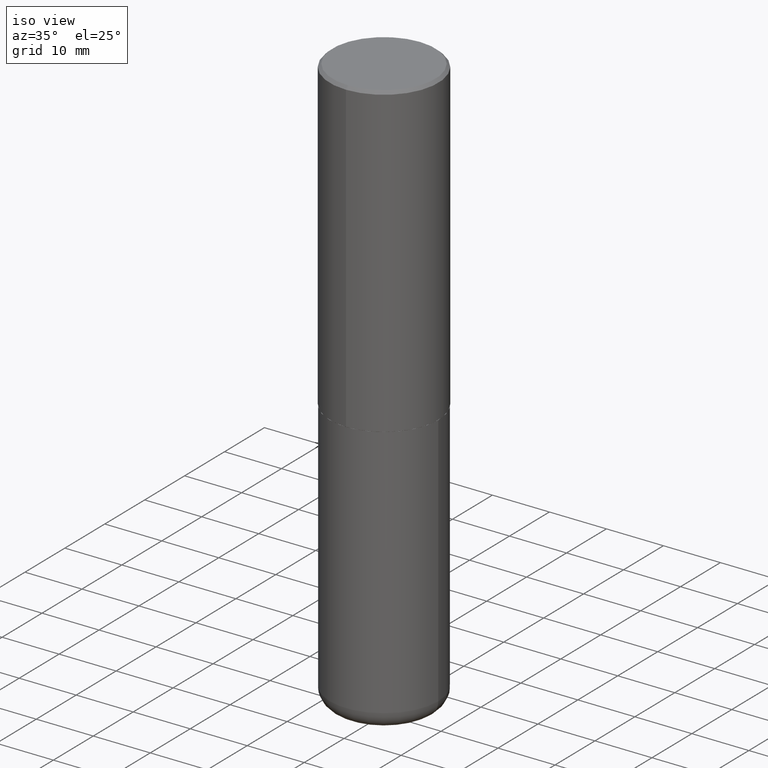
[diagram: clean part render]
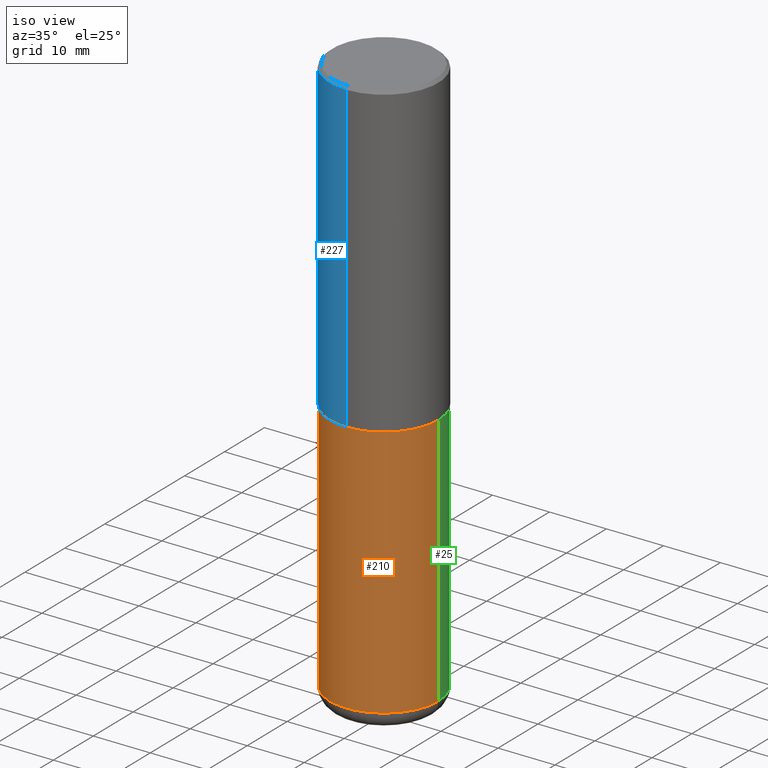
[diagram: same view with three faces highlighted in distinct colors, each labeled with its STEP entity id]
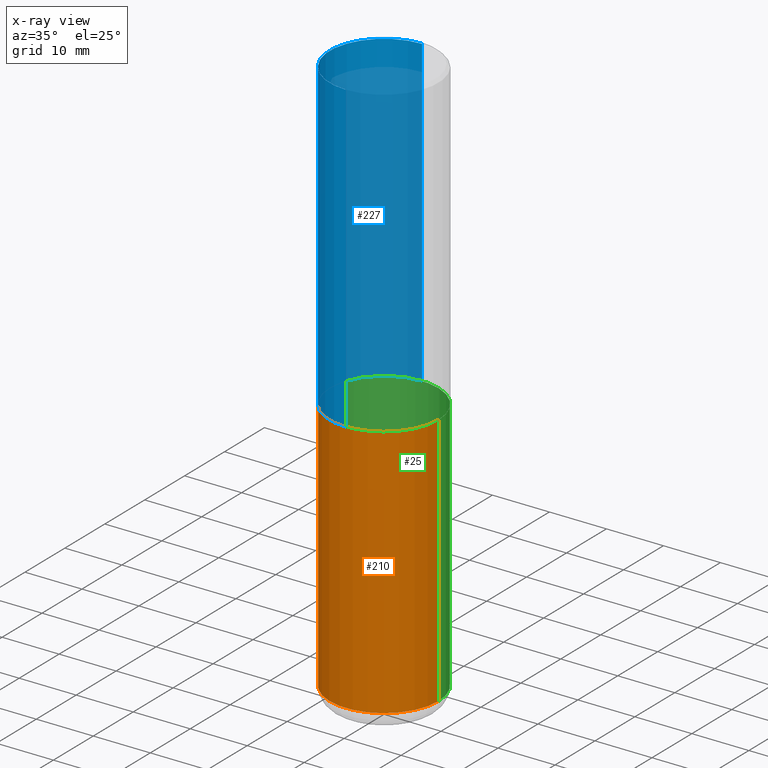
[diagram: x-ray of the same camera — body ghosted, the three highlighted faces saturated]
A machine part, iso view with three faces highlighted in distinct colors.
The next image is the same camera in x-ray (body ghosted, the three faces saturated) — at least one of them is partly hidden behind the body in this view.
Their STEP definitions:

[orange] entity #210 — the highlighted cylindrical surface (partial cylindrical patch) has radius 9.525 mm, axis along (-0, 0, 1).
#3 = EDGE_CURVE ( 'NONE', #370, #16, #353, .T. ) ;
#13 = AXIS2_PLACEMENT_3D ( 'NONE', #289, #185, #325 ) ;
#16 = VERTEX_POINT ( 'NONE', #89 ) ;
#28 = LINE ( 'NONE', #147, #78 ) ;
#76 = DIRECTION ( 'NONE',  ( 1.000000000000000000, -6.982962677686265922E-15, 4.876176775795935793E-29 ) ) ;
#78 = VECTOR ( 'NONE', #115, 39.37007874015748143 ) ;
#89 = CARTESIAN_POINT ( 'NONE',  ( -0.3750000000000000555, -7.818637460776168963E-15, -2.125000000000000000 ) ) ;
#97 = VERTEX_POINT ( 'NONE', #404 ) ;
#102 = VERTEX_POINT ( 'NONE', #174 ) ;
#110 = EDGE_CURVE ( 'NONE', #97, #102, #28, .T. ) ;
#115 = DIRECTION ( 'NONE',  ( -2.445468806185136877E-29, 3.491481338843145188E-15, 1.000000000000000000 ) ) ;
#128 = EDGE_LOOP ( 'NONE', ( #191, #163, #360, #365 ) ) ;
#141 = CARTESIAN_POINT ( 'NONE',  ( -0.3750000000000001110, -1.088241233561102684E-14, -3.880000000000000338 ) ) ;
#147 = CARTESIAN_POINT ( 'NONE',  ( 0.3750000000000000555, -2.618611004132350016E-15, 1.828566290923476203E-29 ) ) ;
#163 = ORIENTED_EDGE ( 'NONE', *, *, #205, .T. ) ;
#165 = FACE_OUTER_BOUND ( 'NONE', #128, .T. ) ;
#172 = DIRECTION ( 'NONE',  ( -2.445468806185136597E-29, 3.491481338843145583E-15, 1.000000000000000000 ) ) ;
#174 = CARTESIAN_POINT ( 'NONE',  ( 0.3750000000000000555, -1.003800884917403364E-14, -2.125000000000000000 ) ) ;
#185 = DIRECTION ( 'NONE',  ( -2.445468806185136597E-29, 3.491481338843145583E-15, 1.000000000000000000 ) ) ;
#191 = ORIENTED_EDGE ( 'NONE', *, *, #3, .F. ) ;
#205 = EDGE_CURVE ( 'NONE', #370, #97, #329, .T. ) ;
#210 = ADVANCED_FACE ( 'NONE', ( #165 ), #273, .T. ) ;
#235 = DIRECTION ( 'NONE',  ( 1.000000000000000000, -6.982962677686266711E-15, 0.000000000000000000 ) ) ;
#239 = DIRECTION ( 'NONE',  ( -2.445468806185136597E-29, 3.491481338843145583E-15, 1.000000000000000000 ) ) ;
#260 = DIRECTION ( 'NONE',  ( -2.445468806185136877E-29, 3.491481338843145188E-15, 1.000000000000000000 ) ) ;
#273 = CYLINDRICAL_SURFACE ( 'NONE', #364, 0.3750000000000000555 ) ;
#289 = CARTESIAN_POINT ( 'NONE',  ( 5.196621213143415268E-29, -7.419397845041683624E-15, -2.125000000000000000 ) ) ;
#291 = CARTESIAN_POINT ( 'NONE',  ( 9.488418967998330085E-29, -1.354694759471140570E-14, -3.880000000000000338 ) ) ;
#321 = AXIS2_PLACEMENT_3D ( 'NONE', #291, #239, #235 ) ;
#325 = DIRECTION ( 'NONE',  ( 1.000000000000000000, -6.982962677686266711E-15, 0.000000000000000000 ) ) ;
#329 = CIRCLE ( 'NONE', #321, 0.3750000000000000555 ) ;
#353 = LINE ( 'NONE', #415, #382 ) ;
#356 = CIRCLE ( 'NONE', #13, 0.3750000000000000555 ) ;
#360 = ORIENTED_EDGE ( 'NONE', *, *, #110, .T. ) ;
#364 = AXIS2_PLACEMENT_3D ( 'NONE', #401, #172, #76 ) ;
#365 = ORIENTED_EDGE ( 'NONE', *, *, #411, .F. ) ;
#370 = VERTEX_POINT ( 'NONE', #141 ) ;
#382 = VECTOR ( 'NONE', #260, 39.37007874015748143 ) ;
#401 = CARTESIAN_POINT ( 'NONE',  ( 0.000000000000000000, 0.000000000000000000, 0.000000000000000000 ) ) ;
#404 = CARTESIAN_POINT ( 'NONE',  ( 0.3750000000000001110, -1.616555859884375729E-14, -3.880000000000000338 ) ) ;
#411 = EDGE_CURVE ( 'NONE', #16, #102, #356, .T. ) ;
#415 = CARTESIAN_POINT ( 'NONE',  ( -0.3750000000000000555, 2.664535259100376091E-15, -1.844600658845589598E-29 ) ) ;

[blue] entity #227 — the highlighted cylindrical surface (partial cylindrical patch) has radius 9.525 mm, axis along (-0, 0, 1).
#35 = DIRECTION ( 'NONE',  ( -6.982962677686266711E-15, -1.000000000000000000, 3.492725745712018196E-15 ) ) ;
#37 = ORIENTED_EDGE ( 'NONE', *, *, #87, .F. ) ;
#50 = CIRCLE ( 'NONE', #390, 0.3750000000000001110 ) ;
#52 = CARTESIAN_POINT ( 'NONE',  ( 2.664535259100376880E-15, 0.3750000000000002220, -1.309772154642007612E-15 ) ) ;
#54 = DIRECTION ( 'NONE',  ( -2.444599841513017620E-29, 3.492725745712018196E-15, 1.000000000000000000 ) ) ;
#75 = EDGE_CURVE ( 'NONE', #362, #302, #50, .T. ) ;
#87 = EDGE_CURVE ( 'NONE', #150, #362, #409, .T. ) ;
#95 = VERTEX_POINT ( 'NONE', #369 ) ;
#125 = ORIENTED_EDGE ( 'NONE', *, *, #352, .T. ) ;
#133 = ORIENTED_EDGE ( 'NONE', *, *, #347, .T. ) ;
#150 = VERTEX_POINT ( 'NONE', #153 ) ;
#153 = CARTESIAN_POINT ( 'NONE',  ( 2.664535259100402913E-15, 0.3749999999999928391, -2.124000000000000998 ) ) ;
#154 = VECTOR ( 'NONE', #54, 39.37007874015748143 ) ;
#168 = LINE ( 'NONE', #375, #154 ) ;
#183 = AXIS2_PLACEMENT_3D ( 'NONE', #209, #406, #279 ) ;
#189 = ORIENTED_EDGE ( 'NONE', *, *, #75, .F. ) ;
#190 = CYLINDRICAL_SURFACE ( 'NONE', #252, 0.3750000000000002220 ) ;
#196 = CARTESIAN_POINT ( 'NONE',  ( -2.572686749164324336E-15, -0.3750000000000001665, -0.01999999999999877570 ) ) ;
#201 = DIRECTION ( 'NONE',  ( -6.982962677686265922E-15, -1.000000000000000000, 3.494488891895535640E-15 ) ) ;
#209 = CARTESIAN_POINT ( 'NONE',  ( 5.192330063373648592E-29, -7.418549483892325607E-15, -2.123999999999999666 ) ) ;
#227 = ADVANCED_FACE ( 'NONE', ( #313 ), #190, .T. ) ;
#240 = CARTESIAN_POINT ( 'NONE',  ( 4.889199683026055945E-31, -6.985451491424065481E-17, -0.02000000000000008715 ) ) ;
#252 = AXIS2_PLACEMENT_3D ( 'NONE', #299, #306, #35 ) ;
#279 = DIRECTION ( 'NONE',  ( -6.982962677686266711E-15, -1.000000000000000000, 3.642463991552348591E-15 ) ) ;
#281 = CARTESIAN_POINT ( 'NONE',  ( 2.618611004132351200E-15, 0.3750000000000000555, -0.02000000000000139513 ) ) ;
#293 = VECTOR ( 'NONE', #333, 39.37007874015748143 ) ;
#299 = CARTESIAN_POINT ( 'NONE',  ( 0.000000000000000000, 0.000000000000000000, 0.000000000000000000 ) ) ;
#302 = VERTEX_POINT ( 'NONE', #196 ) ;
#305 = DIRECTION ( 'NONE',  ( -2.444599841513017620E-29, 3.492725745712017802E-15, 1.000000000000000000 ) ) ;
#306 = DIRECTION ( 'NONE',  ( -2.444599841513017620E-29, 3.492725745712017802E-15, 1.000000000000000000 ) ) ;
#313 = FACE_OUTER_BOUND ( 'NONE', #399, .T. ) ;
#333 = DIRECTION ( 'NONE',  ( -2.444599841513017620E-29, 3.492725745712018196E-15, 1.000000000000000000 ) ) ;
#337 = CIRCLE ( 'NONE', #183, 0.3750000000000002776 ) ;
#347 = EDGE_CURVE ( 'NONE', #150, #95, #337, .T. ) ;
#352 = EDGE_CURVE ( 'NONE', #95, #302, #168, .T. ) ;
#362 = VERTEX_POINT ( 'NONE', #281 ) ;
#369 = CARTESIAN_POINT ( 'NONE',  ( -2.618611004132299924E-15, -0.3750000000000077716, -2.123999999999998334 ) ) ;
#375 = CARTESIAN_POINT ( 'NONE',  ( -2.618611004132351594E-15, -0.3750000000000002220, 1.309772154642007612E-15 ) ) ;
#390 = AXIS2_PLACEMENT_3D ( 'NONE', #240, #305, #201 ) ;
#399 = EDGE_LOOP ( 'NONE', ( #37, #133, #125, #189 ) ) ;
#406 = DIRECTION ( 'NONE',  ( -2.444599841513017620E-29, 3.492725745712017802E-15, 1.000000000000000000 ) ) ;
#409 = LINE ( 'NONE', #52, #293 ) ;

[green] entity #25 — the highlighted cylindrical surface (partial cylindrical patch) has radius 9.525 mm, axis along (-0, 0, 1).
#3 = EDGE_CURVE ( 'NONE', #370, #16, #353, .T. ) ;
#10 = ORIENTED_EDGE ( 'NONE', *, *, #218, .T. ) ;
#16 = VERTEX_POINT ( 'NONE', #89 ) ;
#25 = ADVANCED_FACE ( 'NONE', ( #195 ), #274, .T. ) ;
#28 = LINE ( 'NONE', #147, #78 ) ;
#34 = EDGE_CURVE ( 'NONE', #102, #16, #123, .T. ) ;
#53 = DIRECTION ( 'NONE',  ( 1.000000000000000000, -6.982962677686265922E-15, 4.876176775795935793E-29 ) ) ;
#78 = VECTOR ( 'NONE', #115, 39.37007874015748143 ) ;
#85 = AXIS2_PLACEMENT_3D ( 'NONE', #403, #244, #207 ) ;
#89 = CARTESIAN_POINT ( 'NONE',  ( -0.3750000000000000555, -7.818637460776168963E-15, -2.125000000000000000 ) ) ;
#92 = ORIENTED_EDGE ( 'NONE', *, *, #3, .T. ) ;
#97 = VERTEX_POINT ( 'NONE', #404 ) ;
#102 = VERTEX_POINT ( 'NONE', #174 ) ;
#107 = DIRECTION ( 'NONE',  ( -2.445468806185136597E-29, 3.491481338843145583E-15, 1.000000000000000000 ) ) ;
#110 = EDGE_CURVE ( 'NONE', #97, #102, #28, .T. ) ;
#115 = DIRECTION ( 'NONE',  ( -2.445468806185136877E-29, 3.491481338843145188E-15, 1.000000000000000000 ) ) ;
#123 = CIRCLE ( 'NONE', #145, 0.3750000000000000555 ) ;
#141 = CARTESIAN_POINT ( 'NONE',  ( -0.3750000000000001110, -1.088241233561102684E-14, -3.880000000000000338 ) ) ;
#145 = AXIS2_PLACEMENT_3D ( 'NONE', #374, #246, #343 ) ;
#147 = CARTESIAN_POINT ( 'NONE',  ( 0.3750000000000000555, -2.618611004132350016E-15, 1.828566290923476203E-29 ) ) ;
#157 = EDGE_LOOP ( 'NONE', ( #10, #92, #199, #327 ) ) ;
#162 = CIRCLE ( 'NONE', #85, 0.3750000000000000555 ) ;
#174 = CARTESIAN_POINT ( 'NONE',  ( 0.3750000000000000555, -1.003800884917403364E-14, -2.125000000000000000 ) ) ;
#195 = FACE_OUTER_BOUND ( 'NONE', #157, .T. ) ;
#199 = ORIENTED_EDGE ( 'NONE', *, *, #34, .F. ) ;
#207 = DIRECTION ( 'NONE',  ( 1.000000000000000000, -6.982962677686266711E-15, 0.000000000000000000 ) ) ;
#218 = EDGE_CURVE ( 'NONE', #97, #370, #162, .T. ) ;
#244 = DIRECTION ( 'NONE',  ( -2.445468806185136597E-29, 3.491481338843145583E-15, 1.000000000000000000 ) ) ;
#246 = DIRECTION ( 'NONE',  ( -2.445468806185136597E-29, 3.491481338843145583E-15, 1.000000000000000000 ) ) ;
#260 = DIRECTION ( 'NONE',  ( -2.445468806185136877E-29, 3.491481338843145188E-15, 1.000000000000000000 ) ) ;
#274 = CYLINDRICAL_SURFACE ( 'NONE', #307, 0.3750000000000000555 ) ;
#307 = AXIS2_PLACEMENT_3D ( 'NONE', #312, #107, #53 ) ;
#312 = CARTESIAN_POINT ( 'NONE',  ( 0.000000000000000000, 0.000000000000000000, 0.000000000000000000 ) ) ;
#327 = ORIENTED_EDGE ( 'NONE', *, *, #110, .F. ) ;
#343 = DIRECTION ( 'NONE',  ( 1.000000000000000000, -6.982962677686266711E-15, 0.000000000000000000 ) ) ;
#353 = LINE ( 'NONE', #415, #382 ) ;
#370 = VERTEX_POINT ( 'NONE', #141 ) ;
#374 = CARTESIAN_POINT ( 'NONE',  ( 5.196621213143415268E-29, -7.419397845041683624E-15, -2.125000000000000000 ) ) ;
#382 = VECTOR ( 'NONE', #260, 39.37007874015748143 ) ;
#403 = CARTESIAN_POINT ( 'NONE',  ( 9.488418967998330085E-29, -1.354694759471140570E-14, -3.880000000000000338 ) ) ;
#404 = CARTESIAN_POINT ( 'NONE',  ( 0.3750000000000001110, -1.616555859884375729E-14, -3.880000000000000338 ) ) ;
#415 = CARTESIAN_POINT ( 'NONE',  ( -0.3750000000000000555, 2.664535259100376091E-15, -1.844600658845589598E-29 ) ) ;